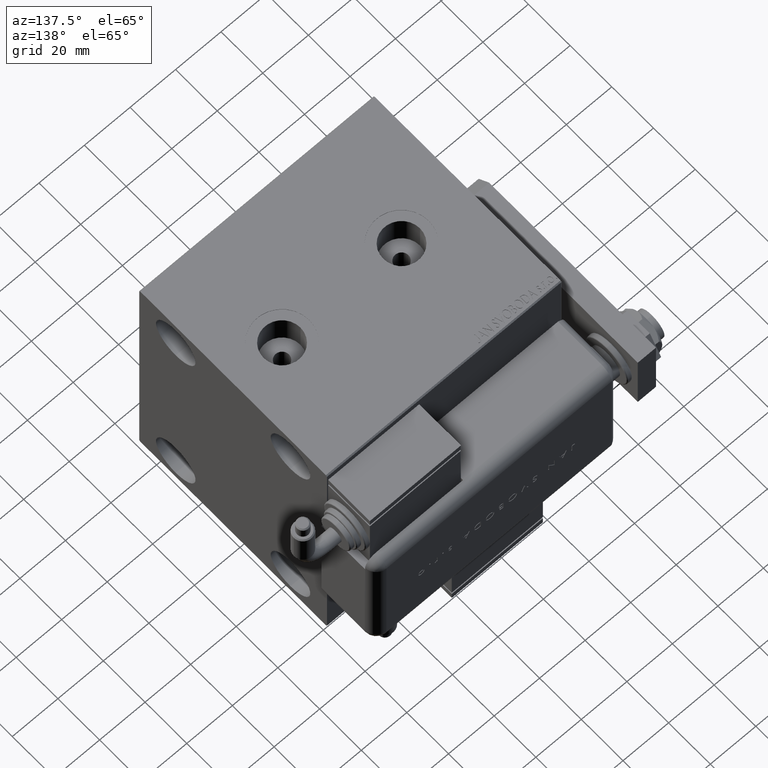
[diagram: clean part render]
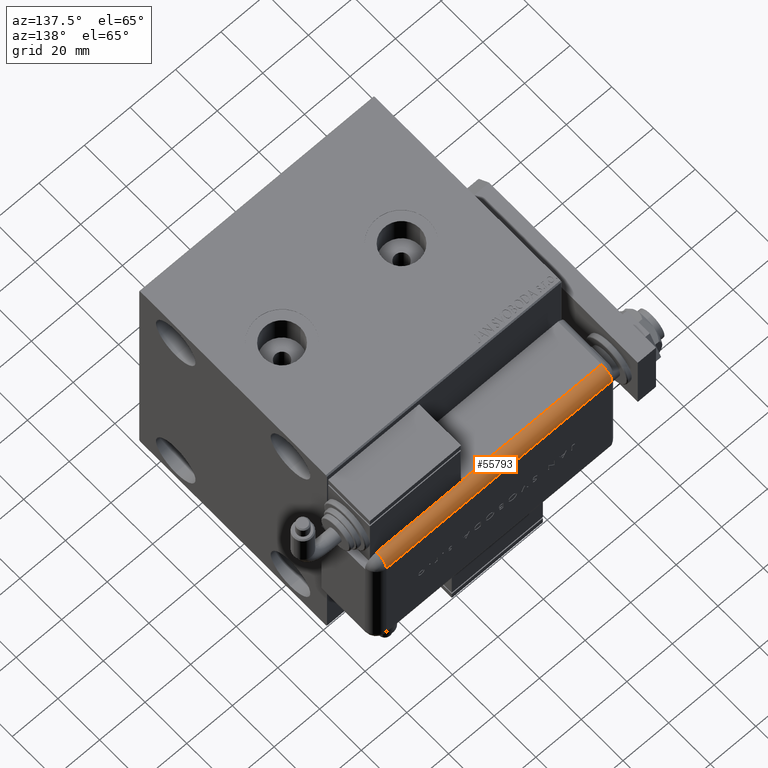
[diagram: same view with one face highlighted and labeled with its STEP entity id]
A machine part, auxiliary view. The second image highlights one B-rep face of the part: STEP entity #55793.
In plain terms, the highlighted cylindrical surface (edge-blend (fillet) strip) has radius 5 mm, axis along (1, -0, -0).
Its self-contained STEP definition (entity closure, byte-faithful):
#306 = CARTESIAN_POINT ( 'NONE',  ( 28.99599839871871865, 20.99999999999998224, 104.0000000000000000 ) ) ;
#1228 = CARTESIAN_POINT ( 'NONE',  ( 28.99999999999999645, 20.79999999999998650, 43.00000000000000000 ) ) ;
#1448 = CYLINDRICAL_SURFACE ( 'NONE', #52437, 5.000000000000000888 ) ;
#2965 = DIRECTION ( 'NONE',  ( -0.000000000000000000, -0.000000000000000000, 1.000000000000000000 ) ) ;
#4638 = LINE ( 'NONE', #306, #13316 ) ;
#4887 = EDGE_CURVE ( 'NONE', #36231, #31035, #55074, .T. ) ;
#6272 = CARTESIAN_POINT ( 'NONE',  ( 28.99599839871871865, 20.99999999999999289, 43.00000000000000000 ) ) ;
#6363 = EDGE_CURVE ( 'NONE', #46635, #9722, #54043, .T. ) ;
#7998 = EDGE_LOOP ( 'NONE', ( #42234, #30690, #10319, #24710, #58823, #22177 ) ) ;
#8239 = CARTESIAN_POINT ( 'NONE',  ( 24.00000000000000000, 25.79999999999998295, 5.000000000000004441 ) ) ;
#9722 = VERTEX_POINT ( 'NONE', #8239 ) ;
#10319 = ORIENTED_EDGE ( 'NONE', *, *, #36746, .T. ) ;
#11383 = CIRCLE ( 'NONE', #33159, 5.000000000000000888 ) ;
#12462 = DIRECTION ( 'NONE',  ( -0.000000000000000000, -0.000000000000000000, 1.000000000000000000 ) ) ;
#12766 = DIRECTION ( 'NONE',  ( -1.000000000000000000, 0.000000000000000000, 0.000000000000000000 ) ) ;
#13316 = VECTOR ( 'NONE', #19197, 1000.000000000000000 ) ;
#13398 = VERTEX_POINT ( 'NONE', #57147 ) ;
#15162 = CIRCLE ( 'NONE', #56806, 5.000000000000000888 ) ;
#15298 = DIRECTION ( 'NONE',  ( -1.000000000000000000, 0.000000000000000000, 0.000000000000000000 ) ) ;
#16800 = CARTESIAN_POINT ( 'NONE',  ( 24.00000000000000000, 25.79999999999998295, 104.0000000000000000 ) ) ;
#18290 = CARTESIAN_POINT ( 'NONE',  ( 28.99999999999999645, 20.79999999999998650, 104.0000000000000000 ) ) ;
#19197 = DIRECTION ( 'NONE',  ( -0.000000000000000000, -0.000000000000000000, 1.000000000000000000 ) ) ;
#20352 = FACE_OUTER_BOUND ( 'NONE', #7998, .T. ) ;
#21990 = EDGE_CURVE ( 'NONE', #31035, #46635, #15162, .T. ) ;
#22177 = ORIENTED_EDGE ( 'NONE', *, *, #4887, .F. ) ;
#24602 = DIRECTION ( 'NONE',  ( -0.000000000000000000, -0.000000000000000000, 1.000000000000000000 ) ) ;
#24710 = ORIENTED_EDGE ( 'NONE', *, *, #6363, .F. ) ;
#29564 = VECTOR ( 'NONE', #2965, 1000.000000000000000 ) ;
#30690 = ORIENTED_EDGE ( 'NONE', *, *, #35265, .F. ) ;
#30750 = DIRECTION ( 'NONE',  ( 0.000000000000000000, 0.000000000000000000, -1.000000000000000000 ) ) ;
#31035 = VERTEX_POINT ( 'NONE', #18290 ) ;
#31314 = DIRECTION ( 'NONE',  ( -0.000000000000000000, 0.000000000000000000, -1.000000000000000000 ) ) ;
#33159 = AXIS2_PLACEMENT_3D ( 'NONE', #43836, #24602, #15298 ) ;
#35265 = EDGE_CURVE ( 'NONE', #13398, #51628, #4638, .T. ) ;
#35556 = VECTOR ( 'NONE', #30750, 1000.000000000000000 ) ;
#35828 = CARTESIAN_POINT ( 'NONE',  ( 24.00000000000000000, 25.79999999999998295, 104.0000000000000000 ) ) ;
#36144 = CARTESIAN_POINT ( 'NONE',  ( 28.99999999999999645, 20.79999999999998650, 104.0000000000000000 ) ) ;
#36231 = VERTEX_POINT ( 'NONE', #1228 ) ;
#36746 = EDGE_CURVE ( 'NONE', #13398, #9722, #11383, .T. ) ;
#37254 = EDGE_CURVE ( 'NONE', #51628, #36231, #58985, .T. ) ;
#39269 = CARTESIAN_POINT ( 'NONE',  ( 24.00000000000000000, 20.79999999999998650, 104.0000000000000000 ) ) ;
#40987 = CARTESIAN_POINT ( 'NONE',  ( 24.00000000000000000, 20.79999999999998650, 104.0000000000000000 ) ) ;
#42234 = ORIENTED_EDGE ( 'NONE', *, *, #37254, .F. ) ;
#42994 = DIRECTION ( 'NONE',  ( -1.000000000000000000, 0.000000000000000000, 0.000000000000000000 ) ) ;
#43836 = CARTESIAN_POINT ( 'NONE',  ( 24.00000000000000000, 20.79999999999998650, 5.000000000000004441 ) ) ;
#44366 = DIRECTION ( 'NONE',  ( 1.000000000000000000, -3.261280134836396706E-14, 0.000000000000000000 ) ) ;
#46635 = VERTEX_POINT ( 'NONE', #35828 ) ;
#48585 = DIRECTION ( 'NONE',  ( 0.000000000000000000, 0.000000000000000000, -1.000000000000000000 ) ) ;
#49646 = CARTESIAN_POINT ( 'NONE',  ( 24.00000000000000000, 20.79999999999998650, 43.00000000000000000 ) ) ;
#51628 = VERTEX_POINT ( 'NONE', #6272 ) ;
#52437 = AXIS2_PLACEMENT_3D ( 'NONE', #39269, #48585, #42994 ) ;
#54043 = LINE ( 'NONE', #16800, #35556 ) ;
#55074 = LINE ( 'NONE', #36144, #29564 ) ;
#55793 = ADVANCED_FACE ( 'NONE', ( #20352 ), #1448, .T. ) ;
#56806 = AXIS2_PLACEMENT_3D ( 'NONE', #40987, #12462, #12766 ) ;
#57147 = CARTESIAN_POINT ( 'NONE',  ( 28.99599839871871865, 21.00000000000000000, 5.000000000000004441 ) ) ;
#58823 = ORIENTED_EDGE ( 'NONE', *, *, #21990, .F. ) ;
#58985 = CIRCLE ( 'NONE', #60981, 5.000000000000000888 ) ;
#60981 = AXIS2_PLACEMENT_3D ( 'NONE', #49646, #31314, #44366 ) ;